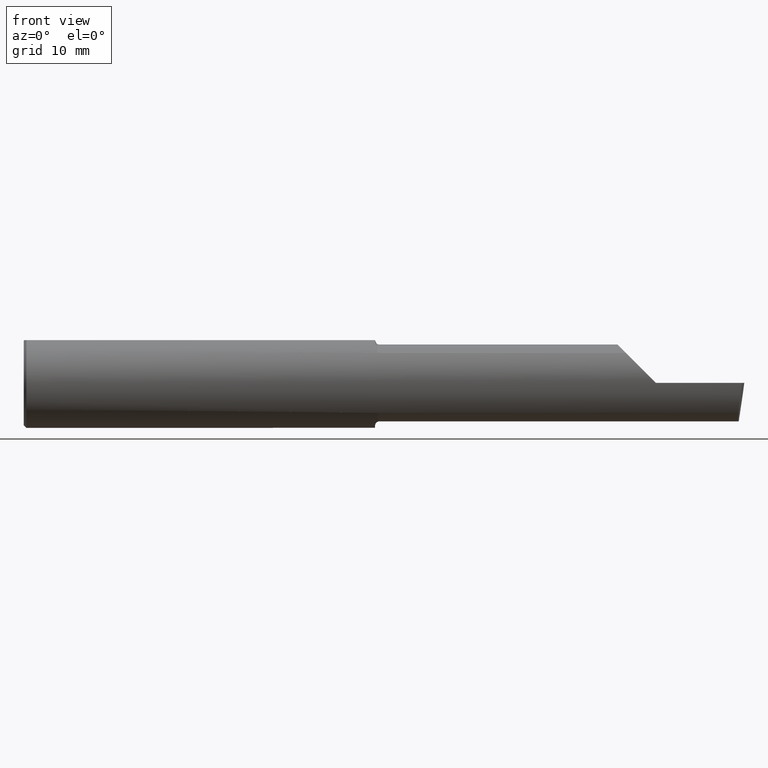
[diagram: clean part render]
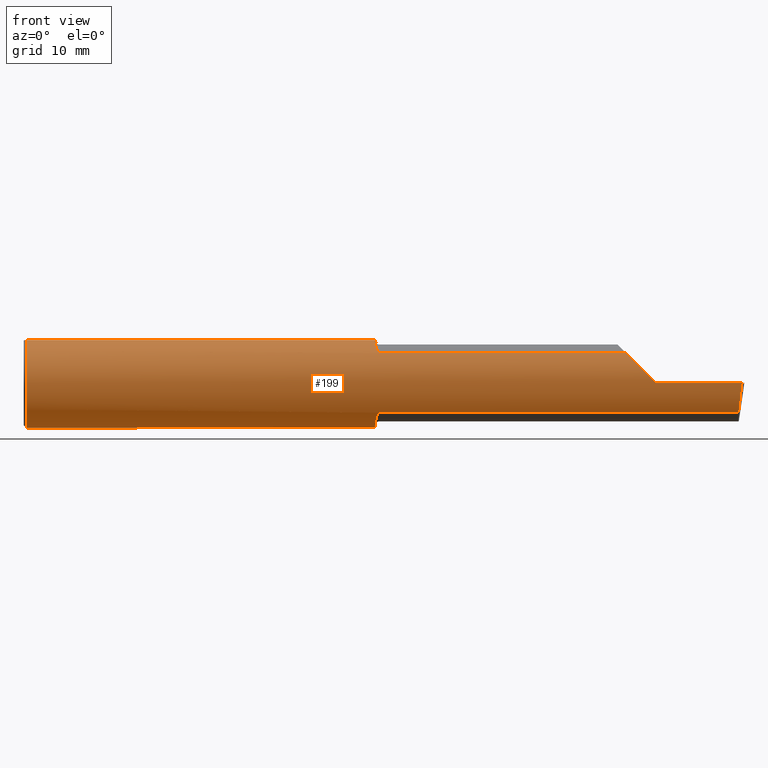
[diagram: same view with one face highlighted and labeled with its STEP entity id]
A machine part, front view. The second image highlights one B-rep face of the part: STEP entity #199.
In plain terms, the highlighted cylindrical surface (partial cylindrical patch) has radius 6.3462 mm, axis along (-1, -0, -0).
Its self-contained STEP definition (entity closure, byte-faithful):
#17 = CARTESIAN_POINT ( 'NONE',  ( 0.000000000000000000, -0.07650098038587477278, 0.2378500000000000059 ) ) ;
#20 = ORIENTED_EDGE ( 'NONE', *, *, #429, .T. ) ;
#30 = CARTESIAN_POINT ( 'NONE',  ( 1.950000000000000178, 0.000000000000000000, 0.000000000000000000 ) ) ;
#31 = CYLINDRICAL_SURFACE ( 'NONE', #662, 0.2498499999999999888 ) ;
#33 = CARTESIAN_POINT ( 'NONE',  ( 1.975000000000000089, -0.1868028301886799081, -0.1659208399614080509 ) ) ;
#34 = CARTESIAN_POINT ( 'NONE',  ( 1.957343635746627175, -0.1582230848692702530, 0.1936715022401944708 ) ) ;
#39 = CARTESIAN_POINT ( 'NONE',  ( 1.969290397284158445, -0.1841927918507055839, 0.1688179232533550678 ) ) ;
#41 = CARTESIAN_POINT ( 'NONE',  ( 1.975000000000000089, -0.1868028301886799636, 0.1659208399614079676 ) ) ;
#51 = CARTESIAN_POINT ( 'NONE',  ( 1.975000000000000089, -0.1868028301886799081, -0.1659208399614080509 ) ) ;
#52 = VERTEX_POINT ( 'NONE', #688 ) ;
#97 = VERTEX_POINT ( 'NONE', #150 ) ;
#98 = CARTESIAN_POINT ( 'NONE',  ( 0.01499999999999999771, 0.000000000000000000, -0.2498499999999999888 ) ) ;
#99 = CARTESIAN_POINT ( 'NONE',  ( 1.951680550596500030, -0.1214972057705736574, 0.2186080375779518026 ) ) ;
#103 = CARTESIAN_POINT ( 'NONE',  ( 1.961268146151110114, -0.1703904609315284868, 0.1828159088808239963 ) ) ;
#104 = ORIENTED_EDGE ( 'NONE', *, *, #388, .T. ) ;
#107 = CARTESIAN_POINT ( 'NONE',  ( 3.344079160038590626, -0.1868028301886808795, 0.1659208399614073015 ) ) ;
#140 = EDGE_CURVE ( 'NONE', #292, #601, #236, .T. ) ;
#150 = CARTESIAN_POINT ( 'NONE',  ( 1.950000000000000178, -0.07650098038590487370, 0.2378500000000000059 ) ) ;
#151 = ORIENTED_EDGE ( 'NONE', *, *, #186, .F. ) ;
#155 = VERTEX_POINT ( 'NONE', #346 ) ;
#156 = AXIS2_PLACEMENT_3D ( 'NONE', #30, #407, #289 ) ;
#159 = CARTESIAN_POINT ( 'NONE',  ( 1.965857071685142010, -0.1799228808997984097, 0.1733778622677443204 ) ) ;
#185 = DIRECTION ( 'NONE',  ( -1.000000000000000000, -0.000000000000000000, -0.000000000000000000 ) ) ;
#186 = EDGE_CURVE ( 'NONE', #155, #785, #288, .T. ) ;
#190 = CARTESIAN_POINT ( 'NONE',  ( 1.970138573936399684, -0.1849738682364335252, -0.1679602226613247096 ) ) ;
#194 = LINE ( 'NONE', #17, #319 ) ;
#199 = ADVANCED_FACE ( 'NONE', ( #600 ), #31, .T. ) ;
#202 = ORIENTED_EDGE ( 'NONE', *, *, #205, .T. ) ;
#205 = EDGE_CURVE ( 'NONE', #552, #329, #767, .T. ) ;
#212 = DIRECTION ( 'NONE',  ( 0.000000000000000000, 0.000000000000000000, 1.000000000000000000 ) ) ;
#216 = CARTESIAN_POINT ( 'NONE',  ( 7.089685198749692867E-32, -0.2498499999999999610, 4.685946446163635703E-16 ) ) ;
#220 = VECTOR ( 'NONE', #762, 39.37007874015748143 ) ;
#222 = CARTESIAN_POINT ( 'NONE',  ( 1.952700302592143444, -0.1312404656039932171, 0.2128935242986060850 ) ) ;
#226 = CARTESIAN_POINT ( 'NONE',  ( 1.950000000000000178, -0.08036415094339718901, 0.2365726648265747134 ) ) ;
#236 = CIRCLE ( 'NONE', #316, 0.2498499999999999888 ) ;
#238 =( BOUNDED_CURVE ( )  B_SPLINE_CURVE ( 3, ( #546, #360, #791, #240 ),
 .UNSPECIFIED., .F., .T. ) 
 B_SPLINE_CURVE_WITH_KNOTS ( ( 4, 4 ),
 ( 4.712388980384687898, 5.438654041019563401 ),
 .UNSPECIFIED. ) 
 CURVE ( )  GEOMETRIC_REPRESENTATION_ITEM ( )  RATIONAL_B_SPLINE_CURVE ( ( 1.000000000000000000, 0.9565258159411005323, 0.9565258159411005323, 1.000000000000000000 ) ) 
 REPRESENTATION_ITEM ( '' )  );
#240 = CARTESIAN_POINT ( 'NONE',  ( 3.344079160038590626, -0.1868028301886808795, 0.1659208399614073015 ) ) ;
#245 = CARTESIAN_POINT ( 'NONE',  ( 0.01499999999999999771, 0.07650098038587481442, 0.2378500000000000059 ) ) ;
#247 = CARTESIAN_POINT ( 'NONE',  ( 1.969285582744839225, -0.1841881072713813239, -0.1688230283719345526 ) ) ;
#253 = CIRCLE ( 'NONE', #598, 0.2498499999999999888 ) ;
#255 = CARTESIAN_POINT ( 'NONE',  ( 1.957341173198633433, -0.1582250006961563316, -0.1936724403215122625 ) ) ;
#256 = ORIENTED_EDGE ( 'NONE', *, *, #437, .T. ) ;
#258 = CARTESIAN_POINT ( 'NONE',  ( 0.01499999999998191669, -0.07650098038590480432, 0.2378500000000000059 ) ) ;
#261 = CARTESIAN_POINT ( 'NONE',  ( 3.987221270274236229, -0.2498499999999999888, -1.346590301211604859E-16 ) ) ;
#263 = DIRECTION ( 'NONE',  ( -1.000000000000000000, -0.000000000000000000, -0.000000000000000000 ) ) ;
#270 = CARTESIAN_POINT ( 'NONE',  ( 3.987221270274236229, -0.2498499999999999888, -1.346590301211604859E-16 ) ) ;
#272 = EDGE_CURVE ( 'NONE', #97, #155, #253, .T. ) ;
#275 = CARTESIAN_POINT ( 'NONE',  ( 1.949999999999999956, -0.09104204635388243871, 0.2329453649474652610 ) ) ;
#285 = CARTESIAN_POINT ( 'NONE',  ( 1.970144309637440916, -0.1849788583324337710, 0.1679547276881061257 ) ) ;
#286 = ORIENTED_EDGE ( 'NONE', *, *, #569, .F. ) ;
#288 = B_SPLINE_CURVE_WITH_KNOTS ( 'NONE', 3,
 ( #226, #275, #534, #99, #222, #479, #34, #103, #713, #159, #581, #39, #285, #652, #529, #355 ),
 .UNSPECIFIED., .F., .F.,
 ( 4, 2, 2, 2, 2, 2, 2, 4 ),
 ( 0.0001034694911878293507, 0.0009591263138367580460, 0.001814783136485686619, 0.002670439959134615193, 0.003098268370459076118, 0.003312182576121310267, 0.003419139678952422354, 0.003526096781783534875 ),
 .UNSPECIFIED. ) ;
#289 = DIRECTION ( 'NONE',  ( 0.000000000000000000, 0.000000000000000000, -1.000000000000000000 ) ) ;
#292 = VERTEX_POINT ( 'NONE', #245 ) ;
#300 = CARTESIAN_POINT ( 'NONE',  ( 1.967016733372314974, -0.1817333077058773672, -0.1714754572696059742 ) ) ;
#310 = CARTESIAN_POINT ( 'NONE',  ( 1.965875558094660525, -0.1799506819598044316, -0.1733486322212175468 ) ) ;
#313 = DIRECTION ( 'NONE',  ( 1.000000000000000000, 0.000000000000000000, 0.000000000000000000 ) ) ;
#314 = EDGE_CURVE ( 'NONE', #610, #493, #592, .T. ) ;
#316 = AXIS2_PLACEMENT_3D ( 'NONE', #516, #763, #212 ) ;
#319 = VECTOR ( 'NONE', #263, 39.37007874015748143 ) ;
#329 = VERTEX_POINT ( 'NONE', #605 ) ;
#341 = DIRECTION ( 'NONE',  ( 0.000000000000000000, 0.000000000000000000, 1.000000000000000000 ) ) ;
#342 = EDGE_LOOP ( 'NONE', ( #286, #20, #202, #104, #615, #151, #422, #256, #665, #459, #756, #505, #706 ) ) ;
#343 = CIRCLE ( 'NONE', #441, 0.2498499999999999888 ) ;
#346 = CARTESIAN_POINT ( 'NONE',  ( 1.950000000000000178, -0.08036415094339718901, 0.2365726648265747134 ) ) ;
#355 = CARTESIAN_POINT ( 'NONE',  ( 1.975000000000000089, -0.1868028301886799636, 0.1659208399614079676 ) ) ;
#360 = CARTESIAN_POINT ( 'NONE',  ( 3.448145753305724259, -0.2498500000000001275, 0.06185424669427388999 ) ) ;
#365 = CARTESIAN_POINT ( 'NONE',  ( 1.972232603162240583, -0.1862758070845880742, -0.1665151405181419519 ) ) ;
#372 = EDGE_CURVE ( 'NONE', #292, #480, #492, .T. ) ;
#385 = CARTESIAN_POINT ( 'NONE',  ( 1.950000000000000178, -0.08036415094339718901, -0.2365726648265747134 ) ) ;
#388 = EDGE_CURVE ( 'NONE', #329, #643, #238, .T. ) ;
#393 = EDGE_CURVE ( 'NONE', #601, #427, #343, .T. ) ;
#407 = DIRECTION ( 'NONE',  ( 1.000000000000000000, 0.000000000000000000, 0.000000000000000000 ) ) ;
#422 = ORIENTED_EDGE ( 'NONE', *, *, #272, .F. ) ;
#427 = VERTEX_POINT ( 'NONE', #258 ) ;
#429 = EDGE_CURVE ( 'NONE', #52, #552, #502, .T. ) ;
#437 = EDGE_CURVE ( 'NONE', #97, #427, #194, .T. ) ;
#441 = AXIS2_PLACEMENT_3D ( 'NONE', #482, #185, #668 ) ;
#459 = ORIENTED_EDGE ( 'NONE', *, *, #140, .F. ) ;
#472 = DIRECTION ( 'NONE',  ( 1.000000000000000000, 0.000000000000000000, 0.000000000000000000 ) ) ;
#477 = CARTESIAN_POINT ( 'NONE',  ( 2.760000000000000231, -0.1868028301886794917, 0.1659208399614086338 ) ) ;
#479 = CARTESIAN_POINT ( 'NONE',  ( 1.955553274544309827, -0.1495649063853954630, 0.2004446339470379590 ) ) ;
#480 = VERTEX_POINT ( 'NONE', #757 ) ;
#482 = CARTESIAN_POINT ( 'NONE',  ( 0.01499999999999999771, 0.000000000000000000, 0.000000000000000000 ) ) ;
#486 = CARTESIAN_POINT ( 'NONE',  ( 1.949999999999990186, -0.1016924291521895674, -0.2293274111511738877 ) ) ;
#492 = LINE ( 'NONE', #742, #690 ) ;
#493 = VERTEX_POINT ( 'NONE', #385 ) ;
#499 = CARTESIAN_POINT ( 'NONE',  ( 3.973097331270538657, -0.2278791102234774268, -0.1196748990301326199 ) ) ;
#500 = CIRCLE ( 'NONE', #156, 0.2498499999999999888 ) ;
#502 =( BOUNDED_CURVE ( )  B_SPLINE_CURVE ( 3, ( #636, #499, #745, #270 ),
 .UNSPECIFIED., .F., .F. ) 
 B_SPLINE_CURVE_WITH_KNOTS ( ( 4, 4 ),
 ( 0.6344818218799022080, 1.360746882514783040 ),
 .UNSPECIFIED. ) 
 CURVE ( )  GEOMETRIC_REPRESENTATION_ITEM ( )  RATIONAL_B_SPLINE_CURVE ( ( 1.000000000000000000, 0.9565258159410998662, 0.9565258159410998662, 1.000000000000000000 ) ) 
 REPRESENTATION_ITEM ( '' )  );
#505 = ORIENTED_EDGE ( 'NONE', *, *, #599, .F. ) ;
#516 = CARTESIAN_POINT ( 'NONE',  ( 0.01499999999999999771, 0.000000000000000000, 0.000000000000000000 ) ) ;
#519 = CARTESIAN_POINT ( 'NONE',  ( 0.000000000000000000, 0.000000000000000000, 0.000000000000000000 ) ) ;
#529 = CARTESIAN_POINT ( 'NONE',  ( 1.973548866468135765, -0.1868028301907325994, 0.1659208399590972050 ) ) ;
#534 = CARTESIAN_POINT ( 'NONE',  ( 1.950332084145229850, -0.1014027185340453246, 0.2286231260779309493 ) ) ;
#546 = CARTESIAN_POINT ( 'NONE',  ( 3.509999999999999787, -0.2498499999999999610, -6.245698675651499853E-17 ) ) ;
#548 = DIRECTION ( 'NONE',  ( 1.000000000000000000, 0.000000000000000000, 0.000000000000000000 ) ) ;
#552 = VERTEX_POINT ( 'NONE', #261 ) ;
#559 = VECTOR ( 'NONE', #774, 39.37007874015748143 ) ;
#569 = EDGE_CURVE ( 'NONE', #52, #610, #628, .T. ) ;
#581 = CARTESIAN_POINT ( 'NONE',  ( 1.967018584423771976, -0.1817363555988621149, 0.1714722504633797717 ) ) ;
#592 = B_SPLINE_CURVE_WITH_KNOTS ( 'NONE', 3,
 ( #51, #735, #365, #190, #247, #300, #310, #673, #795, #255, #609, #676, #486, #730 ),
 .UNSPECIFIED., .F., .F.,
 ( 4, 2, 2, 2, 2, 2, 4 ),
 ( 1.967619685288262155E-07, 0.0001090840123077897305, 0.0002179712626470506375, 0.0004357457633255819654, 0.0008712947646826427238, 0.001742392767396769120, 0.003484588772825019960 ),
 .UNSPECIFIED. ) ;
#598 = AXIS2_PLACEMENT_3D ( 'NONE', #656, #472, #722 ) ;
#599 = EDGE_CURVE ( 'NONE', #493, #480, #500, .T. ) ;
#600 = FACE_OUTER_BOUND ( 'NONE', #342, .T. ) ;
#601 = VERTEX_POINT ( 'NONE', #98 ) ;
#605 = CARTESIAN_POINT ( 'NONE',  ( 3.509999999999999787, -0.2498499999999999610, -6.245698675651499853E-17 ) ) ;
#609 = CARTESIAN_POINT ( 'NONE',  ( 1.955537042546466875, -0.1495003888704991291, -0.2004994225712671274 ) ) ;
#610 = VERTEX_POINT ( 'NONE', #33 ) ;
#615 = ORIENTED_EDGE ( 'NONE', *, *, #714, .F. ) ;
#625 = VECTOR ( 'NONE', #548, 39.37007874015748143 ) ;
#628 = LINE ( 'NONE', #704, #220 ) ;
#636 = CARTESIAN_POINT ( 'NONE',  ( 3.968492717492762445, -0.1868028301886794917, -0.1659208399614086338 ) ) ;
#643 = VERTEX_POINT ( 'NONE', #107 ) ;
#652 = CARTESIAN_POINT ( 'NONE',  ( 1.972243150415551094, -0.1862809296394752345, 0.1665094106511982586 ) ) ;
#656 = CARTESIAN_POINT ( 'NONE',  ( 1.950000000000000178, 0.000000000000000000, 0.000000000000000000 ) ) ;
#662 = AXIS2_PLACEMENT_3D ( 'NONE', #519, #727, #341 ) ;
#665 = ORIENTED_EDGE ( 'NONE', *, *, #393, .F. ) ;
#668 = DIRECTION ( 'NONE',  ( 0.000000000000000000, 0.000000000000000000, 1.000000000000000000 ) ) ;
#673 = CARTESIAN_POINT ( 'NONE',  ( 1.962797058507745440, -0.1743943839926592743, -0.1789958554125693491 ) ) ;
#676 = CARTESIAN_POINT ( 'NONE',  ( 1.951227564404961257, -0.1217005943024299930, -0.2193523119135134258 ) ) ;
#688 = CARTESIAN_POINT ( 'NONE',  ( 3.968492717492762445, -0.1868028301886794917, -0.1659208399614086338 ) ) ;
#690 = VECTOR ( 'NONE', #313, 39.37007874015748143 ) ;
#704 = CARTESIAN_POINT ( 'NONE',  ( 2.760000000000000231, -0.1868028301886794917, -0.1659208399614086338 ) ) ;
#706 = ORIENTED_EDGE ( 'NONE', *, *, #314, .F. ) ;
#713 = CARTESIAN_POINT ( 'NONE',  ( 1.962758562425229947, -0.1743135686468872125, 0.1790760091940035714 ) ) ;
#714 = EDGE_CURVE ( 'NONE', #785, #643, #781, .T. ) ;
#722 = DIRECTION ( 'NONE',  ( 0.000000000000000000, 0.000000000000000000, -1.000000000000000000 ) ) ;
#727 = DIRECTION ( 'NONE',  ( -1.000000000000000000, -0.000000000000000000, -0.000000000000000000 ) ) ;
#730 = CARTESIAN_POINT ( 'NONE',  ( 1.950000000000000178, -0.08036415094339718901, -0.2365726648265747134 ) ) ;
#735 = CARTESIAN_POINT ( 'NONE',  ( 1.973547768521294765, -0.1868028301886799913, -0.1659208399614081619 ) ) ;
#742 = CARTESIAN_POINT ( 'NONE',  ( 0.000000000000000000, 0.07650098038587481442, 0.2378500000000000059 ) ) ;
#745 = CARTESIAN_POINT ( 'NONE',  ( 3.979623920331824660, -0.2498499999999999610, -0.06185424669427504185 ) ) ;
#756 = ORIENTED_EDGE ( 'NONE', *, *, #372, .T. ) ;
#757 = CARTESIAN_POINT ( 'NONE',  ( 1.950000000000000178, 0.07650098038587482829, 0.2378500000000000059 ) ) ;
#762 = DIRECTION ( 'NONE',  ( -1.000000000000000000, -0.000000000000000000, -0.000000000000000000 ) ) ;
#763 = DIRECTION ( 'NONE',  ( -1.000000000000000000, -0.000000000000000000, -0.000000000000000000 ) ) ;
#767 = LINE ( 'NONE', #216, #559 ) ;
#774 = DIRECTION ( 'NONE',  ( -1.000000000000000000, -0.000000000000000000, -0.000000000000000000 ) ) ;
#781 = LINE ( 'NONE', #477, #625 ) ;
#785 = VERTEX_POINT ( 'NONE', #41 ) ;
#791 = CARTESIAN_POINT ( 'NONE',  ( 3.390325100969866945, -0.2278791102234780930, 0.1196748990301311488 ) ) ;
#795 = CARTESIAN_POINT ( 'NONE',  ( 1.961285743882607679, -0.1704402150608120559, -0.1827701868778691952 ) ) ;